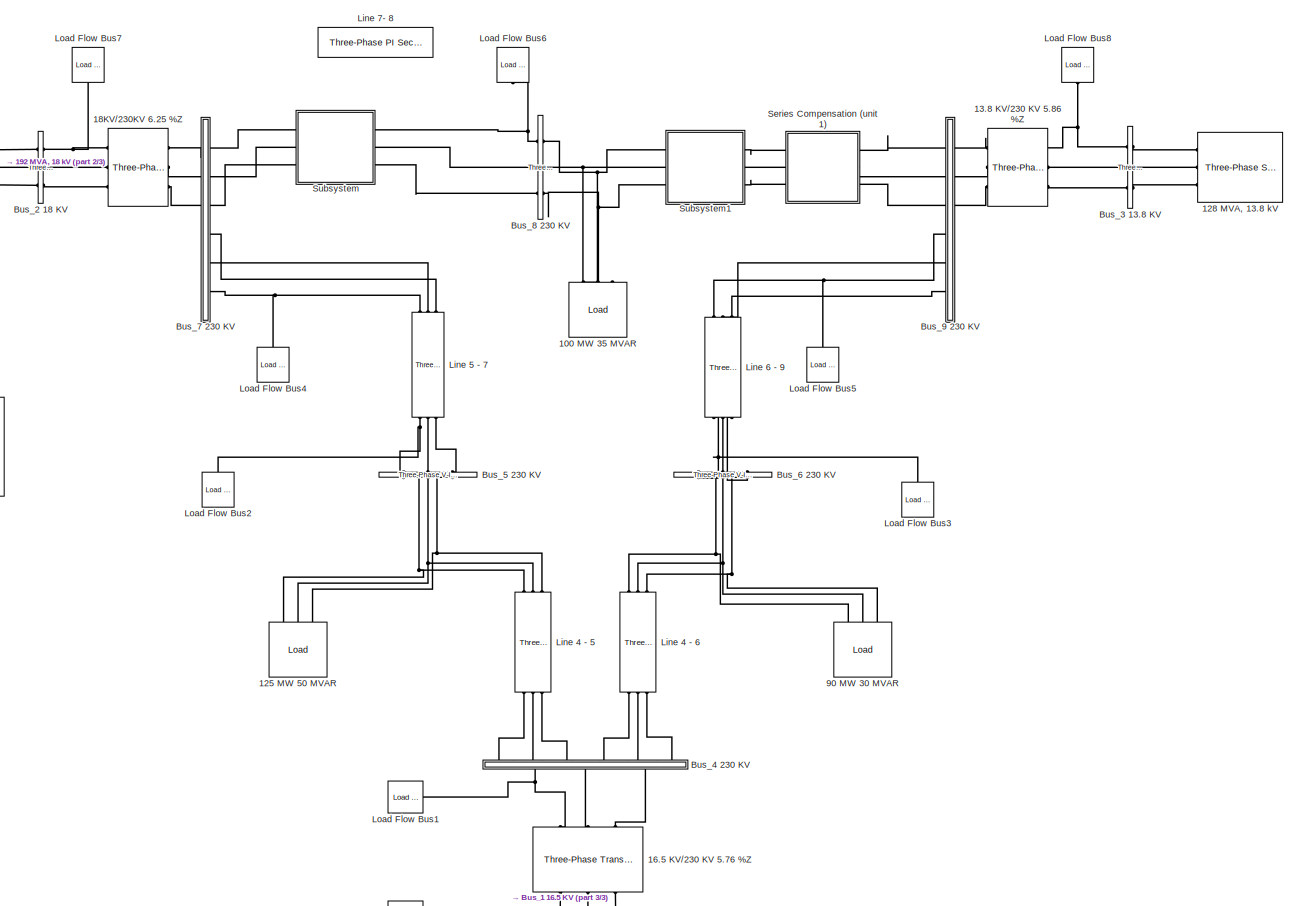
[diagram: root canvas - part 1/3, most of the canvas]
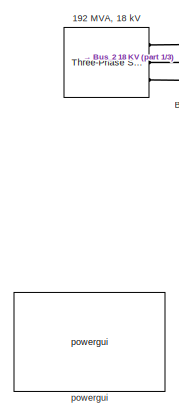
[diagram: root canvas - part 2/3, top left region]
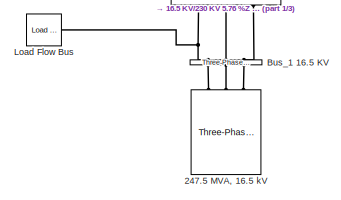
[diagram: root canvas - part 3/3, bottom center region]
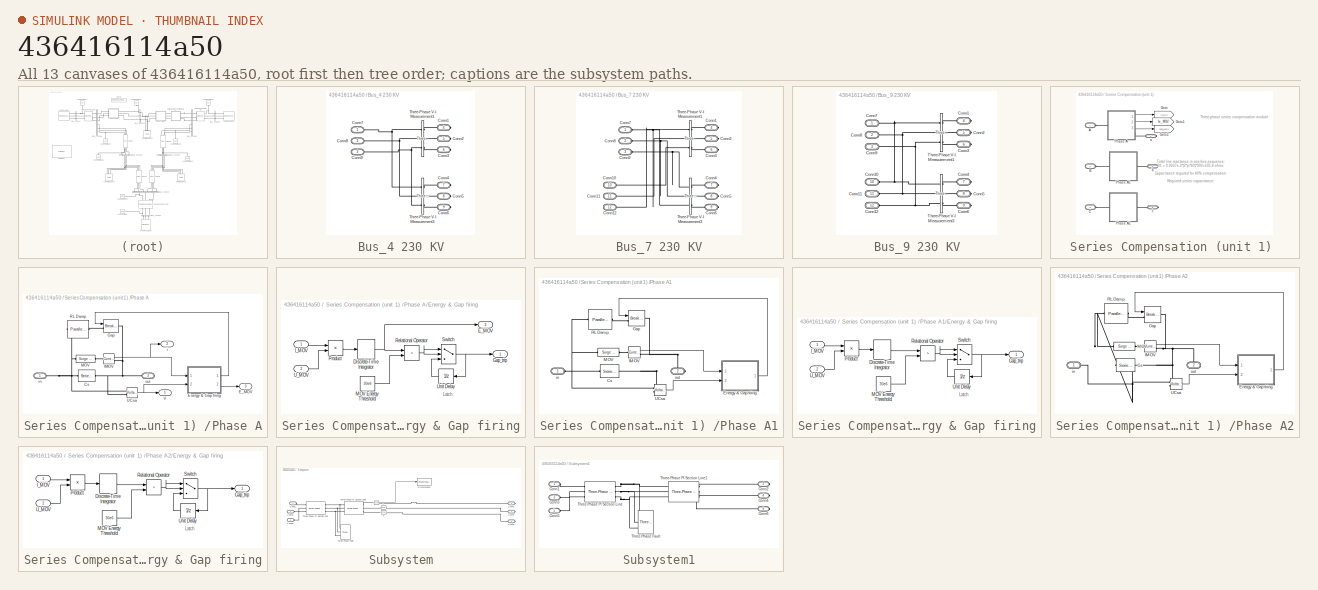
[diagram: thumbnail index - all 13 canvases of the model, root first then tree order]
MODEL slx_436416114a50
KIND model
CONFIG AbsTol = auto
CONFIG FixedStep = auto
CONFIG MaxStep = auto
CONFIG MinStep = auto
CONFIG RelTol = 1e-3
CONFIG SampleTimeConstraint = Unconstrained
CONFIG Solver = ode45
CONFIG SolverMode = Auto
CONFIG SolverName = ode45
CONFIG StartTime = 0.0
CONFIG StopTime = 0.05
BLOCK [Reference]  Line 4 - 6  REF=powerlib/Elements/Three-Phase
PI Section Line
  AttributesFormatString = \n
  Ports = [0, 0, 0, 0, 0, 3, 3]
  SourceBlock = powerlib/Elements/Three-Phase\nPI Section Line
  SourceType = Three-Phase PI Section Line
BLOCK [Reference]  Line 6 - 9  REF=powerlib/Elements/Three-Phase
PI Section Line
  AttributesFormatString = \n
  Ports = [0, 0, 0, 0, 0, 3, 3]
  SourceBlock = powerlib/Elements/Three-Phase\nPI Section Line
  SourceType = Three-Phase PI Section Line
BLOCK [Reference] 100 MW 35 MVAR  REF=jailib/Load  (lib defined in slx_75b92f426bfb)
  Ports = [0, 0, 0, 0, 0, 3]
  SourceBlock = jailib/Load
BLOCK [Reference] 125 MW 50 MVAR  REF=jailib/Load  (lib defined in slx_75b92f426bfb)
  Ports = [0, 0, 0, 0, 0, 3]
  SourceBlock = jailib/Load
BLOCK [Reference] 128 MVA, 13.8 kV  REF=powerlib/Electrical
Sources/Three-Phase Source
  Ports = [0, 0, 0, 0, 0, 0, 3]
  SourceBlock = powerlib/Electrical\nSources/Three-Phase Source
  SourceType = Three-Phase Source
BLOCK [Reference] 13.8 KV//230 KV 5.86 %Z  REF=powerlib/Elements/Three-Phase
Transformer
(Two Windings)
  Ports = [0, 0, 0, 0, 0, 3, 3]
  SourceBlock = powerlib/Elements/Three-Phase\nTransformer\n(Two Windings)
  SourceType = Three-Phase Transformer (Two Windings)
BLOCK [Reference] 16.5 KV//230 KV 5.76 %Z       REF=powerlib/Elements/Three-Phase
Transformer
(Two Windings)
  Ports = [0, 0, 0, 0, 0, 3, 3]
  SourceBlock = powerlib/Elements/Three-Phase\nTransformer\n(Two Windings)
  SourceType = Three-Phase Transformer (Two Windings)
BLOCK [Reference] 18KV//230KV 6.25 %Z  REF=powerlib/Elements/Three-Phase
Transformer
(Two Windings)
  Ports = [0, 0, 0, 0, 0, 3, 3]
  SourceBlock = powerlib/Elements/Three-Phase\nTransformer\n(Two Windings)
  SourceType = Three-Phase Transformer (Two Windings)
BLOCK [Reference] 192 MVA, 18 kV  REF=powerlib/Electrical
Sources/Three-Phase Source
  Ports = [0, 0, 0, 0, 0, 0, 3]
  SourceBlock = powerlib/Electrical\nSources/Three-Phase Source
  SourceType = Three-Phase Source
BLOCK [Reference] 247.5 MVA, 16.5 kV  REF=powerlib/Electrical
Sources/Three-Phase Source
  Ports = [0, 0, 0, 0, 0, 0, 3]
  SourceBlock = powerlib/Electrical\nSources/Three-Phase Source
  SourceType = Three-Phase Source
BLOCK [Reference] 90 MW 30 MVAR  REF=jailib/Load  (lib defined in slx_75b92f426bfb)
  Ports = [0, 0, 0, 0, 0, 3]
  SourceBlock = jailib/Load
BLOCK [Reference] Bus_1 16.5 KV  REF=powerlib/Measurements/Three-Phase
V-I Measurement
  Ports = [0, 0, 0, 0, 0, 3, 3]
  SourceBlock = powerlib/Measurements/Three-Phase\nV-I Measurement
  SourceType = Three-Phase VI Measurement
BLOCK [Reference] Bus_2 18 KV  REF=powerlib/Measurements/Three-Phase
V-I Measurement
  Ports = [0, 0, 0, 0, 0, 3, 3]
  SourceBlock = powerlib/Measurements/Three-Phase\nV-I Measurement
  SourceType = Three-Phase VI Measurement
BLOCK [Reference] Bus_3 13.8 KV  REF=powerlib/Measurements/Three-Phase
V-I Measurement
  Ports = [0, 0, 0, 0, 0, 3, 3]
  SourceBlock = powerlib/Measurements/Three-Phase\nV-I Measurement
  SourceType = Three-Phase VI Measurement
BLOCK [SubSystem] Bus_4 230 KV
  Ports = [0, 0, 0, 0, 0, 3, 6]
  RequestExecContextInheritance = off
  Variant = off
BLOCK [PMIOPort] Bus_4 230 KV/Conn1
  Port = 4
  Side = Right
BLOCK [PMIOPort] Bus_4 230 KV/Conn2
  Port = 5
  Side = Right
BLOCK [PMIOPort] Bus_4 230 KV/Conn3
  Port = 6
  Side = Right
BLOCK [PMIOPort] Bus_4 230 KV/Conn4
  Port = 7
  Side = Right
BLOCK [PMIOPort] Bus_4 230 KV/Conn5
  Port = 8
  Side = Right
BLOCK [PMIOPort] Bus_4 230 KV/Conn6
  Port = 9
  Side = Right
BLOCK [PMIOPort] Bus_4 230 KV/Conn7
  Port = 1
  Side = Left
BLOCK [PMIOPort] Bus_4 230 KV/Conn8
  Port = 2
  Side = Left
BLOCK [PMIOPort] Bus_4 230 KV/Conn9
  Port = 3
  Side = Left
BLOCK [Reference] Bus_4 230 KV/Three-Phase V-I Measurement1  REF=powerlib/Measurements/Three-Phase
V-I Measurement
  Ports = [0, 0, 0, 0, 0, 3, 3]
  SourceBlock = powerlib/Measurements/Three-Phase\nV-I Measurement
  SourceType = Three-Phase VI Measurement
BLOCK [Reference] Bus_4 230 KV/Three-Phase V-I Measurement3  REF=powerlib/Measurements/Three-Phase
V-I Measurement
  Ports = [0, 0, 0, 0, 0, 3, 3]
  SourceBlock = powerlib/Measurements/Three-Phase\nV-I Measurement
  SourceType = Three-Phase VI Measurement
BLOCK [Reference] Bus_5 230 KV  REF=powerlib/Measurements/Three-Phase
V-I Measurement
  Ports = [0, 0, 0, 0, 0, 3, 3]
  SourceBlock = powerlib/Measurements/Three-Phase\nV-I Measurement
  SourceType = Three-Phase VI Measurement
BLOCK [Reference] Bus_6 230 KV  REF=powerlib/Measurements/Three-Phase
V-I Measurement
  Ports = [0, 0, 0, 0, 0, 3, 3]
  SourceBlock = powerlib/Measurements/Three-Phase\nV-I Measurement
  SourceType = Three-Phase VI Measurement
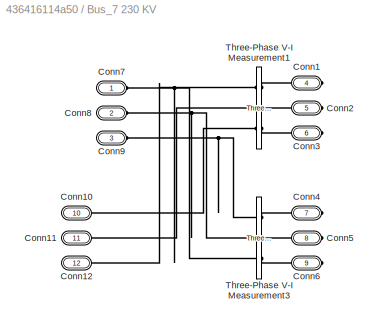
BLOCK [SubSystem] Bus_7 230 KV
  Ports = [0, 0, 0, 0, 0, 6, 6]
  RequestExecContextInheritance = off
  Variant = off
BLOCK [PMIOPort] Bus_7 230 KV/Conn1
  Port = 4
  Side = Right
BLOCK [PMIOPort] Bus_7 230 KV/Conn10
  Port = 10
  Side = Left
BLOCK [PMIOPort] Bus_7 230 KV/Conn11
  Port = 11
  Side = Left
BLOCK [PMIOPort] Bus_7 230 KV/Conn12
  Port = 12
  Side = Left
BLOCK [PMIOPort] Bus_7 230 KV/Conn2
  Port = 5
  Side = Right
BLOCK [PMIOPort] Bus_7 230 KV/Conn3
  Port = 6
  Side = Right
BLOCK [PMIOPort] Bus_7 230 KV/Conn4
  Port = 7
  Side = Right
BLOCK [PMIOPort] Bus_7 230 KV/Conn5
  Port = 8
  Side = Right
BLOCK [PMIOPort] Bus_7 230 KV/Conn6
  Port = 9
  Side = Right
BLOCK [PMIOPort] Bus_7 230 KV/Conn7
  Port = 1
  Side = Left
BLOCK [PMIOPort] Bus_7 230 KV/Conn8
  Port = 2
  Side = Left
BLOCK [PMIOPort] Bus_7 230 KV/Conn9
  Port = 3
  Side = Left
BLOCK [Reference] Bus_7 230 KV/Three-Phase V-I Measurement1  REF=powerlib/Measurements/Three-Phase
V-I Measurement
  Ports = [0, 0, 0, 0, 0, 3, 3]
  SourceBlock = powerlib/Measurements/Three-Phase\nV-I Measurement
  SourceType = Three-Phase VI Measurement
BLOCK [Reference] Bus_7 230 KV/Three-Phase V-I Measurement3  REF=powerlib/Measurements/Three-Phase
V-I Measurement
  Ports = [0, 0, 0, 0, 0, 3, 3]
  SourceBlock = powerlib/Measurements/Three-Phase\nV-I Measurement
  SourceType = Three-Phase VI Measurement
BLOCK [Reference] Bus_8 230 KV  REF=powerlib/Measurements/Three-Phase
V-I Measurement
  Ports = [0, 0, 0, 0, 0, 3, 3]
  SourceBlock = powerlib/Measurements/Three-Phase\nV-I Measurement
  SourceType = Three-Phase VI Measurement
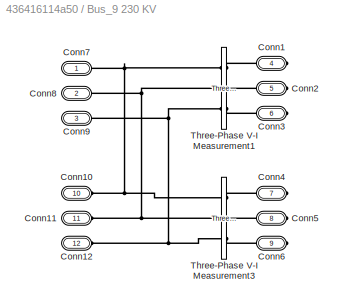
BLOCK [SubSystem] Bus_9 230 KV
  Ports = [0, 0, 0, 0, 0, 6, 6]
  RequestExecContextInheritance = off
  Variant = off
BLOCK [PMIOPort] Bus_9 230 KV/Conn1
  Port = 4
  Side = Right
BLOCK [PMIOPort] Bus_9 230 KV/Conn10
  Port = 10
  Side = Left
BLOCK [PMIOPort] Bus_9 230 KV/Conn11
  Port = 11
  Side = Left
BLOCK [PMIOPort] Bus_9 230 KV/Conn12
  Port = 12
  Side = Left
BLOCK [PMIOPort] Bus_9 230 KV/Conn2
  Port = 5
  Side = Right
BLOCK [PMIOPort] Bus_9 230 KV/Conn3
  Port = 6
  Side = Right
BLOCK [PMIOPort] Bus_9 230 KV/Conn4
  Port = 7
  Side = Right
BLOCK [PMIOPort] Bus_9 230 KV/Conn5
  Port = 8
  Side = Right
BLOCK [PMIOPort] Bus_9 230 KV/Conn6
  Port = 9
  Side = Right
BLOCK [PMIOPort] Bus_9 230 KV/Conn7
  Port = 1
  Side = Left
BLOCK [PMIOPort] Bus_9 230 KV/Conn8
  Port = 2
  Side = Left
BLOCK [PMIOPort] Bus_9 230 KV/Conn9
  Port = 3
  Side = Left
BLOCK [Reference] Bus_9 230 KV/Three-Phase V-I Measurement1  REF=powerlib/Measurements/Three-Phase
V-I Measurement
  Ports = [0, 0, 0, 0, 0, 3, 3]
  SourceBlock = powerlib/Measurements/Three-Phase\nV-I Measurement
  SourceType = Three-Phase VI Measurement
BLOCK [Reference] Bus_9 230 KV/Three-Phase V-I Measurement3  REF=powerlib/Measurements/Three-Phase
V-I Measurement
  Ports = [0, 0, 0, 0, 0, 3, 3]
  SourceBlock = powerlib/Measurements/Three-Phase\nV-I Measurement
  SourceType = Three-Phase VI Measurement
BLOCK [Reference] Line 4 - 5   REF=powerlib/Elements/Three-Phase
PI Section Line
  AttributesFormatString = \n
  Ports = [0, 0, 0, 0, 0, 3, 3]
  SourceBlock = powerlib/Elements/Three-Phase\nPI Section Line
  SourceType = Three-Phase PI Section Line
BLOCK [Reference] Line 5 - 7   REF=powerlib/Elements/Three-Phase
PI Section Line
  AttributesFormatString = \n
  Ports = [0, 0, 0, 0, 0, 3, 3]
  SourceBlock = powerlib/Elements/Three-Phase\nPI Section Line
  SourceType = Three-Phase PI Section Line
BLOCK [Reference] Line 7- 8  REF=powerlib/Elements/Three-Phase
PI Section Line
  AttributesFormatString = \n
  Ports = [0, 0, 0, 0, 0, 3, 3]
  SourceBlock = powerlib/Elements/Three-Phase\nPI Section Line
  SourceType = Three-Phase PI Section Line
BLOCK [Reference] Load Flow Bus  REF=powerlib/Measurements/Load Flow Bus
  AttributesFormatString = %<ID>\n%<Vbase>V\n%<VLF>pu\n%<angleLF>deg.
  Ports = [0, 0, 0, 0, 0, 1]
  SourceBlock = powerlib/Measurements/Load Flow Bus
  SourceType = Load Flow Bus
BLOCK [Reference] Load Flow Bus1  REF=powerlib/Measurements/Load Flow Bus
  AttributesFormatString = %<ID>\n%<Vbase>V\n%<VLF>pu\n%<angleLF>deg.
  Ports = [0, 0, 0, 0, 0, 1]
  SourceBlock = powerlib/Measurements/Load Flow Bus
  SourceType = Load Flow Bus
BLOCK [Reference] Load Flow Bus2  REF=powerlib/Measurements/Load Flow Bus
  AttributesFormatString = %<ID>\n%<Vbase>V\n%<VLF>pu\n%<angleLF>deg.
  Ports = [0, 0, 0, 0, 0, 1]
  SourceBlock = powerlib/Measurements/Load Flow Bus
  SourceType = Load Flow Bus
BLOCK [Reference] Load Flow Bus3  REF=powerlib/Measurements/Load Flow Bus
  AttributesFormatString = %<ID>\n%<Vbase>V\n%<VLF>pu\n%<angleLF>deg.
  Ports = [0, 0, 0, 0, 0, 1]
  SourceBlock = powerlib/Measurements/Load Flow Bus
  SourceType = Load Flow Bus
BLOCK [Reference] Load Flow Bus4  REF=powerlib/Measurements/Load Flow Bus
  AttributesFormatString = %<ID>\n%<Vbase>V\n%<VLF>pu\n%<angleLF>deg.
  Ports = [0, 0, 0, 0, 0, 1]
  SourceBlock = powerlib/Measurements/Load Flow Bus
  SourceType = Load Flow Bus
BLOCK [Reference] Load Flow Bus5  REF=powerlib/Measurements/Load Flow Bus
  AttributesFormatString = %<ID>\n%<Vbase>V\n%<VLF>pu\n%<angleLF>deg.
  Ports = [0, 0, 0, 0, 0, 1]
  SourceBlock = powerlib/Measurements/Load Flow Bus
  SourceType = Load Flow Bus
BLOCK [Reference] Load Flow Bus6  REF=powerlib/Measurements/Load Flow Bus
  AttributesFormatString = %<ID>\n%<Vbase>V\n%<VLF>pu\n%<angleLF>deg.
  Ports = [0, 0, 0, 0, 0, 1]
  SourceBlock = powerlib/Measurements/Load Flow Bus
  SourceType = Load Flow Bus
BLOCK [Reference] Load Flow Bus7  REF=powerlib/Measurements/Load Flow Bus
  AttributesFormatString = %<ID>\n%<Vbase>V\n%<VLF>pu\n%<angleLF>deg.
  Ports = [0, 0, 0, 0, 0, 1]
  SourceBlock = powerlib/Measurements/Load Flow Bus
  SourceType = Load Flow Bus
BLOCK [Reference] Load Flow Bus8  REF=powerlib/Measurements/Load Flow Bus
  AttributesFormatString = %<ID>\n%<Vbase>V\n%<VLF>pu\n%<angleLF>deg.
  Ports = [0, 0, 0, 0, 0, 1]
  SourceBlock = powerlib/Measurements/Load Flow Bus
  SourceType = Load Flow Bus
BLOCK [SubSystem] Series Compensation (unit 1) 
  Ports = [0, 0, 0, 0, 0, 3, 3]
  RequestExecContextInheritance = off
  Variant = off
BLOCK [PMIOPort] Series Compensation (unit 1) /A
  Port = 1
  Side = Left
BLOCK [PMIOPort] Series Compensation (unit 1) /B
  Port = 2
  Side = Left
BLOCK [PMIOPort] Series Compensation (unit 1) /C
  Port = 3
  Side = Left
BLOCK [Goto] Series Compensation (unit 1) /Goto
  GotoTag = Va_Cs
  TagVisibility = global
BLOCK [Goto] Series Compensation (unit 1) /Goto1
  GotoTag = Ia_MOV
  TagVisibility = global
BLOCK [Goto] Series Compensation (unit 1) /Goto2
  GotoTag = Wa_MOV
  TagVisibility = global
BLOCK [SubSystem] Series Compensation (unit 1) /Phase A
  Ports = [0, 3, 0, 0, 0, 1, 1]
  RequestExecContextInheritance = off
  Variant = off
BLOCK [Reference] Series Compensation (unit 1) /Phase A/Cs  REF=powerlib/Elements/Series RLC Branch
  AttributesFormatString = \n
  Ports = [0, 0, 0, 0, 0, 1, 1]
  SourceBlock = powerlib/Elements/Series RLC Branch
  SourceType = Series RLC Branch
BLOCK [Outport] Series Compensation (unit 1) /Phase A/E_MOV
  IconDisplay = Port number
  Port = 3
BLOCK [SubSystem] Series Compensation (unit 1) /Phase A/Energy & Gap firing
  Ports = [2, 2]
  RequestExecContextInheritance = off
  Variant = off
BLOCK [DiscreteIntegrator] Series Compensation (unit 1) /Phase A/Energy & Gap firing/Discrete-Time Integrator
  ICPrevOutput = DiscIntNeverNeededParam
  ICPrevScaledInput = DiscIntNeverNeededParam
  Ports = [1, 1]
  SampleTime = 0.01
BLOCK [Outport] Series Compensation (unit 1) /Phase A/Energy & Gap firing/E_MOV
  IconDisplay = Port number
  InitialOutput = 0
  Port = 2
BLOCK [Outport] Series Compensation (unit 1) /Phase A/Energy & Gap firing/Gap_trip
  IconDisplay = Port number
BLOCK [Inport] Series Compensation (unit 1) /Phase A/Energy & Gap firing/I_MOV
  IconDisplay = Port number
BLOCK [Constant] Series Compensation (unit 1) /Phase A/Energy & Gap firing/MOV Energy Threshold
  Value = 30e6
BLOCK [Product] Series Compensation (unit 1) /Phase A/Energy & Gap firing/Product
  Ports = [2, 1]
  RndMeth = Floor
BLOCK [RelationalOperator] Series Compensation (unit 1) /Phase A/Energy & Gap firing/Relational Operator
  Operator = >
  Ports = [2, 1]
  ZeroCross = off
BLOCK [Switch] Series Compensation (unit 1) /Phase A/Energy & Gap firing/Switch
  SaturateOnIntegerOverflow = off
  Threshold = 0.5
  ZeroCross = off
BLOCK [Inport] Series Compensation (unit 1) /Phase A/Energy & Gap firing/U_MOV
  IconDisplay = Port number
  Port = 2
BLOCK [UnitDelay] Series Compensation (unit 1) /Phase A/Energy & Gap firing/Unit Delay
  SampleTime = 0.01
BLOCK [Reference] Series Compensation (unit 1) /Phase A/Gap  REF=powerlib/Elements/Breaker
  AttributesFormatString = \n
  Ports = [1, 0, 0, 0, 0, 1, 1]
  SourceBlock = powerlib/Elements/Breaker
  SourceType = Breaker
BLOCK [Reference] Series Compensation (unit 1) /Phase A/IMOV  REF=powerlib/Measurements/Current Measurement
  AttributesFormatString = \n
  Ports = [0, 1, 0, 0, 0, 1, 1]
  SourceBlock = powerlib/Measurements/Current Measurement
  SourceType = Current Measurement
  Tag = PoWeRsYsTeMmEaSuReMeNt
BLOCK [Reference] Series Compensation (unit 1) /Phase A/MOV  REF=powerlib/Elements/Surge Arrester
  AttributesFormatString = \n
  Ports = [0, 0, 0, 0, 0, 1, 1]
  SourceBlock = powerlib/Elements/Surge Arrester
  SourceType = Surge Arrester
BLOCK [Reference] Series Compensation (unit 1) /Phase A/RL Damp.  REF=powerlib/Elements/Parallel RLC Branch
  AttributesFormatString = \n
  Ports = [0, 0, 0, 0, 0, 1, 1]
  SourceBlock = powerlib/Elements/Parallel RLC Branch
  SourceType = Parallel RLC Branch
BLOCK [Reference] Series Compensation (unit 1) /Phase A/UCsa  REF=powerlib/Measurements/Voltage Measurement
  AttributesFormatString = \n
  Ports = [0, 1, 0, 0, 0, 2]
  SourceBlock = powerlib/Measurements/Voltage Measurement
  SourceType = Voltage Measurement
  Tag = PoWeRsYsTeMmEaSuReMeNt
BLOCK [Outport] Series Compensation (unit 1) /Phase A/V
  IconDisplay = Port number
BLOCK [Outport] Series Compensation (unit 1) /Phase A/i
  IconDisplay = Port number
  Port = 2
BLOCK [PMIOPort] Series Compensation (unit 1) /Phase A/in
  Port = 1
  Side = Left
BLOCK [PMIOPort] Series Compensation (unit 1) /Phase A/out 
  Port = 2
  Side = Right
BLOCK [SubSystem] Series Compensation (unit 1) /Phase A1
  Ports = [0, 0, 0, 0, 0, 1, 1]
  RequestExecContextInheritance = off
  Variant = off
BLOCK [Reference] Series Compensation (unit 1) /Phase A1/Cs  REF=powerlib/Elements/Series RLC Branch
  AttributesFormatString = \n
  Ports = [0, 0, 0, 0, 0, 1, 1]
  SourceBlock = powerlib/Elements/Series RLC Branch
  SourceType = Series RLC Branch
BLOCK [SubSystem] Series Compensation (unit 1) /Phase A1/Energy & Gap firing
  Ports = [2, 1]
  RequestExecContextInheritance = off
  Variant = off
BLOCK [DiscreteIntegrator] Series Compensation (unit 1) /Phase A1/Energy & Gap firing/Discrete-Time Integrator
  ICPrevOutput = DiscIntNeverNeededParam
  ICPrevScaledInput = DiscIntNeverNeededParam
  Ports = [1, 1]
  SampleTime = 0.01
BLOCK [Outport] Series Compensation (unit 1) /Phase A1/Energy & Gap firing/Gap_trip
  IconDisplay = Port number
BLOCK [Inport] Series Compensation (unit 1) /Phase A1/Energy & Gap firing/I_MOV
  IconDisplay = Port number
BLOCK [Constant] Series Compensation (unit 1) /Phase A1/Energy & Gap firing/MOV Energy Threshold
  Value = 30e6
BLOCK [Product] Series Compensation (unit 1) /Phase A1/Energy & Gap firing/Product
  Ports = [2, 1]
  RndMeth = Floor
BLOCK [RelationalOperator] Series Compensation (unit 1) /Phase A1/Energy & Gap firing/Relational Operator
  Operator = >
  Ports = [2, 1]
  ZeroCross = off
BLOCK [Switch] Series Compensation (unit 1) /Phase A1/Energy & Gap firing/Switch
  SaturateOnIntegerOverflow = off
  Threshold = 0.5
  ZeroCross = off
BLOCK [Inport] Series Compensation (unit 1) /Phase A1/Energy & Gap firing/U_MOV
  IconDisplay = Port number
  Port = 2
BLOCK [UnitDelay] Series Compensation (unit 1) /Phase A1/Energy & Gap firing/Unit Delay
  SampleTime = 0.01
BLOCK [Reference] Series Compensation (unit 1) /Phase A1/Gap  REF=powerlib/Elements/Breaker
  AttributesFormatString = \n
  Ports = [1, 0, 0, 0, 0, 1, 1]
  SourceBlock = powerlib/Elements/Breaker
  SourceType = Breaker
BLOCK [Reference] Series Compensation (unit 1) /Phase A1/IMOV  REF=powerlib/Measurements/Current Measurement
  AttributesFormatString = \n
  Ports = [0, 1, 0, 0, 0, 1, 1]
  SourceBlock = powerlib/Measurements/Current Measurement
  SourceType = Current Measurement
  Tag = PoWeRsYsTeMmEaSuReMeNt
BLOCK [Reference] Series Compensation (unit 1) /Phase A1/MOV  REF=powerlib/Elements/Surge Arrester
  AttributesFormatString = \n
  Ports = [0, 0, 0, 0, 0, 1, 1]
  SourceBlock = powerlib/Elements/Surge Arrester
  SourceType = Surge Arrester
BLOCK [Reference] Series Compensation (unit 1) /Phase A1/RL Damp.  REF=powerlib/Elements/Parallel RLC Branch
  AttributesFormatString = \n
  Ports = [0, 0, 0, 0, 0, 1, 1]
  SourceBlock = powerlib/Elements/Parallel RLC Branch
  SourceType = Parallel RLC Branch
BLOCK [Reference] Series Compensation (unit 1) /Phase A1/UCsa  REF=powerlib/Measurements/Voltage Measurement
  AttributesFormatString = \n
  Ports = [0, 1, 0, 0, 0, 2]
  SourceBlock = powerlib/Measurements/Voltage Measurement
  SourceType = Voltage Measurement
  Tag = PoWeRsYsTeMmEaSuReMeNt
BLOCK [PMIOPort] Series Compensation (unit 1) /Phase A1/in
  Port = 1
  Side = Left
BLOCK [PMIOPort] Series Compensation (unit 1) /Phase A1/out 
  Port = 2
  Side = Right
BLOCK [SubSystem] Series Compensation (unit 1) /Phase A2
  Ports = [0, 0, 0, 0, 0, 1, 1]
  RequestExecContextInheritance = off
  Variant = off
BLOCK [Reference] Series Compensation (unit 1) /Phase A2/Cs  REF=powerlib/Elements/Series RLC Branch
  AttributesFormatString = \n
  Ports = [0, 0, 0, 0, 0, 1, 1]
  SourceBlock = powerlib/Elements/Series RLC Branch
  SourceType = Series RLC Branch
BLOCK [SubSystem] Series Compensation (unit 1) /Phase A2/Energy & Gap firing
  Ports = [2, 1]
  RequestExecContextInheritance = off
  Variant = off
BLOCK [DiscreteIntegrator] Series Compensation (unit 1) /Phase A2/Energy & Gap firing/Discrete-Time Integrator
  ICPrevOutput = DiscIntNeverNeededParam
  ICPrevScaledInput = DiscIntNeverNeededParam
  Ports = [1, 1]
  SampleTime = 0.01
BLOCK [Outport] Series Compensation (unit 1) /Phase A2/Energy & Gap firing/Gap_trip
  IconDisplay = Port number
BLOCK [Inport] Series Compensation (unit 1) /Phase A2/Energy & Gap firing/I_MOV
  IconDisplay = Port number
BLOCK [Constant] Series Compensation (unit 1) /Phase A2/Energy & Gap firing/MOV Energy Threshold
  Value = 30e6
BLOCK [Product] Series Compensation (unit 1) /Phase A2/Energy & Gap firing/Product
  Ports = [2, 1]
  RndMeth = Floor
BLOCK [RelationalOperator] Series Compensation (unit 1) /Phase A2/Energy & Gap firing/Relational Operator
  Operator = >
  Ports = [2, 1]
  ZeroCross = off
BLOCK [Switch] Series Compensation (unit 1) /Phase A2/Energy & Gap firing/Switch
  SaturateOnIntegerOverflow = off
  Threshold = 0.5
  ZeroCross = off
BLOCK [Inport] Series Compensation (unit 1) /Phase A2/Energy & Gap firing/U_MOV
  IconDisplay = Port number
  Port = 2
BLOCK [UnitDelay] Series Compensation (unit 1) /Phase A2/Energy & Gap firing/Unit Delay
  SampleTime = 0.01
BLOCK [Reference] Series Compensation (unit 1) /Phase A2/Gap  REF=powerlib/Elements/Breaker
  AttributesFormatString = \n
  Ports = [1, 0, 0, 0, 0, 1, 1]
  SourceBlock = powerlib/Elements/Breaker
  SourceType = Breaker
BLOCK [Reference] Series Compensation (unit 1) /Phase A2/IMOV  REF=powerlib/Measurements/Current Measurement
  AttributesFormatString = \n
  Ports = [0, 1, 0, 0, 0, 1, 1]
  SourceBlock = powerlib/Measurements/Current Measurement
  SourceType = Current Measurement
  Tag = PoWeRsYsTeMmEaSuReMeNt
BLOCK [Reference] Series Compensation (unit 1) /Phase A2/MOV  REF=powerlib/Elements/Surge Arrester
  AttributesFormatString = \n
  Ports = [0, 0, 0, 0, 0, 1, 1]
  SourceBlock = powerlib/Elements/Surge Arrester
  SourceType = Surge Arrester
BLOCK [Reference] Series Compensation (unit 1) /Phase A2/RL Damp.  REF=powerlib/Elements/Parallel RLC Branch
  AttributesFormatString = \n
  Ports = [0, 0, 0, 0, 0, 1, 1]
  SourceBlock = powerlib/Elements/Parallel RLC Branch
  SourceType = Parallel RLC Branch
BLOCK [Reference] Series Compensation (unit 1) /Phase A2/UCsa  REF=powerlib/Measurements/Voltage Measurement
  AttributesFormatString = \n
  Ports = [0, 1, 0, 0, 0, 2]
  SourceBlock = powerlib/Measurements/Voltage Measurement
  SourceType = Voltage Measurement
  Tag = PoWeRsYsTeMmEaSuReMeNt
BLOCK [PMIOPort] Series Compensation (unit 1) /Phase A2/in
  Port = 1
  Side = Left
BLOCK [PMIOPort] Series Compensation (unit 1) /Phase A2/out 
  Port = 2
  Side = Right
BLOCK [PMIOPort] Series Compensation (unit 1) /a
  Port = 4
  Side = Right
BLOCK [PMIOPort] Series Compensation (unit 1) /b
  Port = 5
  Side = Right
BLOCK [PMIOPort] Series Compensation (unit 1) /c
  Port = 6
  Side = Right
BLOCK [SubSystem] Subsystem
  Ports = [0, 0, 0, 0, 0, 3, 3]
  RequestExecContextInheritance = off
  Variant = off
BLOCK [Reference] Subsystem/   REF=powerlib/Measurements/Current Measurement
  Ports = [0, 1, 0, 0, 0, 1, 1]
  SourceBlock = powerlib/Measurements/Current Measurement
  SourceType = Current Measurement
  UserDataPersistent = on
BLOCK [Reference] Subsystem/ 1  REF=powerlib/Measurements/Current Measurement
  Ports = [0, 1, 0, 0, 0, 1, 1]
  SourceBlock = powerlib/Measurements/Current Measurement
  SourceType = Current Measurement
  UserDataPersistent = on
BLOCK [Reference] Subsystem/ 2  REF=powerlib/Measurements/Current Measurement
  Ports = [0, 1, 0, 0, 0, 1, 1]
  SourceBlock = powerlib/Measurements/Current Measurement
  SourceType = Current Measurement
  UserDataPersistent = on
BLOCK [PMIOPort] Subsystem/Conn1
  Port = 1
  Side = Left
BLOCK [PMIOPort] Subsystem/Conn2
  Port = 2
  Side = Right
BLOCK [PMIOPort] Subsystem/Conn3
  Port = 3
  Side = Left
BLOCK [PMIOPort] Subsystem/Conn4
  Port = 4
  Side = Right
BLOCK [PMIOPort] Subsystem/Conn5
  Port = 5
  Side = Left
BLOCK [PMIOPort] Subsystem/Conn6
  Port = 6
  Side = Right
BLOCK [Reference] Subsystem/Three-Phase Fault  REF=powerlib/Elements/Three-Phase Fault
  Ports = [0, 0, 0, 0, 0, 3]
  SourceBlock = powerlib/Elements/Three-Phase Fault
  SourceType = Three-Phase Fault
BLOCK [Reference] Subsystem/Three-Phase PI Section Line  REF=powerlib/Elements/Three-Phase
PI Section Line
  AttributesFormatString = \n
  Ports = [0, 0, 0, 0, 0, 3, 3]
  SourceBlock = powerlib/Elements/Three-Phase\nPI Section Line
  SourceType = Three-Phase PI Section Line
BLOCK [Reference] Subsystem/Three-Phase PI Section Line1  REF=powerlib/Elements/Three-Phase
PI Section Line
  AttributesFormatString = \n
  Ports = [0, 0, 0, 0, 0, 3, 3]
  SourceBlock = powerlib/Elements/Three-Phase\nPI Section Line
  SourceType = Three-Phase PI Section Line
BLOCK [ToWorkspace] Subsystem/To Workspace
  FixptAsFi = on
  MaxDataPoints = inf
  Ports = [1]
  SampleTime = -1
  Save2DSignal = 3-D array (concatenate along third dimension)
  SaveFormat = Timeseries
  VariableName = simout
BLOCK [SubSystem] Subsystem1
  Ports = [0, 0, 0, 0, 0, 3, 3]
  RequestExecContextInheritance = off
  Variant = off
BLOCK [PMIOPort] Subsystem1/Conn1
  Port = 1
  Side = Left
BLOCK [PMIOPort] Subsystem1/Conn2
  Port = 2
  Side = Right
BLOCK [PMIOPort] Subsystem1/Conn3
  Port = 3
  Side = Left
BLOCK [PMIOPort] Subsystem1/Conn4
  Port = 4
  Side = Right
BLOCK [PMIOPort] Subsystem1/Conn5
  Port = 5
  Side = Left
BLOCK [PMIOPort] Subsystem1/Conn6
  Port = 6
  Side = Right
BLOCK [Reference] Subsystem1/Three-Phase Fault  REF=powerlib/Elements/Three-Phase Fault
  Ports = [0, 0, 0, 0, 0, 3]
  SourceBlock = powerlib/Elements/Three-Phase Fault
  SourceType = Three-Phase Fault
BLOCK [Reference] Subsystem1/Three-Phase PI Section Line  REF=powerlib/Elements/Three-Phase
PI Section Line
  AttributesFormatString = \n
  Ports = [0, 0, 0, 0, 0, 3, 3]
  SourceBlock = powerlib/Elements/Three-Phase\nPI Section Line
  SourceType = Three-Phase PI Section Line
BLOCK [Reference] Subsystem1/Three-Phase PI Section Line1  REF=powerlib/Elements/Three-Phase
PI Section Line
  AttributesFormatString = \n
  Ports = [0, 0, 0, 0, 0, 3, 3]
  SourceBlock = powerlib/Elements/Three-Phase\nPI Section Line
  SourceType = Three-Phase PI Section Line
BLOCK [Reference] powergui  REF=powerlib/powergui
  Ports = []
  Priority = 1
  SourceBlock = powerlib/powergui
  SourceType = PSB option menu block
  UserDataPersistent = on
ANNOTATION Series Compensation (unit 1) : Three-phase series compensation module
ANNOTATION Series Compensation (unit 1) : Total line reactance in positive-sequence: X1 = 0.9337e-3*(2*pi*60)*300=105.6 ohms Capacitance required for 40% compensation: Required series capacitance: Xc=0.4*105.6 = 42.24 ohms or Cs= 62.8 uF MOV protection level required to protect the capacitors at 2.5 timesthe nominal capacitor voltage. (The nominal capacitor voltage is taken at 2 kA rms line curent) Uprot.= 2.5*2kA*42.24*sqrt(2)= 298.7 kV
ANNOTATION Series Compensation (unit 1) /Phase A/Energy & Gap firing: Latch
ANNOTATION Series Compensation (unit 1) /Phase A1/Energy & Gap firing: Latch
ANNOTATION Series Compensation (unit 1) /Phase A2/Energy & Gap firing: Latch
NET Series Compensation (unit 1) /Phase A/Energy & Gap firing/Discrete-Time Integrator:1 -> Series Compensation (unit 1) /Phase A/Energy & Gap firing/E_MOV:1, Series Compensation (unit 1) /Phase A/Energy & Gap firing/Relational Operator:1
LINE Series Compensation (unit 1) /Phase A/Energy & Gap firing/I_MOV:1 -> Series Compensation (unit 1) /Phase A/Energy & Gap firing/Product:1
LINE Series Compensation (unit 1) /Phase A/Energy & Gap firing/MOV Energy Threshold:1 -> Series Compensation (unit 1) /Phase A/Energy & Gap firing/Relational Operator:2
LINE Series Compensation (unit 1) /Phase A/Energy & Gap firing/Product:1 -> Series Compensation (unit 1) /Phase A/Energy & Gap firing/Discrete-Time Integrator:1
NET Series Compensation (unit 1) /Phase A/Energy & Gap firing/Relational Operator:1 -> Series Compensation (unit 1) /Phase A/Energy & Gap firing/Switch:1, Series Compensation (unit 1) /Phase A/Energy & Gap firing/Switch:2
NET Series Compensation (unit 1) /Phase A/Energy & Gap firing/Switch:1 -> Series Compensation (unit 1) /Phase A/Energy & Gap firing/Gap_trip:1, Series Compensation (unit 1) /Phase A/Energy & Gap firing/Unit Delay:1
LINE Series Compensation (unit 1) /Phase A/Energy & Gap firing/U_MOV:1 -> Series Compensation (unit 1) /Phase A/Energy & Gap firing/Product:2
LINE Series Compensation (unit 1) /Phase A/Energy & Gap firing/Unit Delay:1 -> Series Compensation (unit 1) /Phase A/Energy & Gap firing/Switch:3
LINE Series Compensation (unit 1) /Phase A/Energy & Gap firing:1 -> Series Compensation (unit 1) /Phase A/Gap:1
LINE Series Compensation (unit 1) /Phase A/Energy & Gap firing:2 -> Series Compensation (unit 1) /Phase A/E_MOV:1
NET Series Compensation (unit 1) /Phase A/IMOV:1 -> Series Compensation (unit 1) /Phase A/Energy & Gap firing:1, Series Compensation (unit 1) /Phase A/i:1
NET Series Compensation (unit 1) /Phase A/UCsa:1 -> Series Compensation (unit 1) /Phase A/Energy & Gap firing:2, Series Compensation (unit 1) /Phase A/V:1
LINE Series Compensation (unit 1) /Phase A1/Energy & Gap firing/Discrete-Time Integrator:1 -> Series Compensation (unit 1) /Phase A1/Energy & Gap firing/Relational Operator:1
LINE Series Compensation (unit 1) /Phase A1/Energy & Gap firing/I_MOV:1 -> Series Compensation (unit 1) /Phase A1/Energy & Gap firing/Product:1
LINE Series Compensation (unit 1) /Phase A1/Energy & Gap firing/MOV Energy Threshold:1 -> Series Compensation (unit 1) /Phase A1/Energy & Gap firing/Relational Operator:2
LINE Series Compensation (unit 1) /Phase A1/Energy & Gap firing/Product:1 -> Series Compensation (unit 1) /Phase A1/Energy & Gap firing/Discrete-Time Integrator:1
NET Series Compensation (unit 1) /Phase A1/Energy & Gap firing/Relational Operator:1 -> Series Compensation (unit 1) /Phase A1/Energy & Gap firing/Switch:1, Series Compensation (unit 1) /Phase A1/Energy & Gap firing/Switch:2
NET Series Compensation (unit 1) /Phase A1/Energy & Gap firing/Switch:1 -> Series Compensation (unit 1) /Phase A1/Energy & Gap firing/Gap_trip:1, Series Compensation (unit 1) /Phase A1/Energy & Gap firing/Unit Delay:1
LINE Series Compensation (unit 1) /Phase A1/Energy & Gap firing/U_MOV:1 -> Series Compensation (unit 1) /Phase A1/Energy & Gap firing/Product:2
LINE Series Compensation (unit 1) /Phase A1/Energy & Gap firing/Unit Delay:1 -> Series Compensation (unit 1) /Phase A1/Energy & Gap firing/Switch:3
LINE Series Compensation (unit 1) /Phase A1/Energy & Gap firing:1 -> Series Compensation (unit 1) /Phase A1/Gap:1
LINE Series Compensation (unit 1) /Phase A1/IMOV:1 -> Series Compensation (unit 1) /Phase A1/Energy & Gap firing:1
LINE Series Compensation (unit 1) /Phase A1/UCsa:1 -> Series Compensation (unit 1) /Phase A1/Energy & Gap firing:2
LINE Series Compensation (unit 1) /Phase A2/Energy & Gap firing/Discrete-Time Integrator:1 -> Series Compensation (unit 1) /Phase A2/Energy & Gap firing/Relational Operator:1
LINE Series Compensation (unit 1) /Phase A2/Energy & Gap firing/I_MOV:1 -> Series Compensation (unit 1) /Phase A2/Energy & Gap firing/Product:1
LINE Series Compensation (unit 1) /Phase A2/Energy & Gap firing/MOV Energy Threshold:1 -> Series Compensation (unit 1) /Phase A2/Energy & Gap firing/Relational Operator:2
LINE Series Compensation (unit 1) /Phase A2/Energy & Gap firing/Product:1 -> Series Compensation (unit 1) /Phase A2/Energy & Gap firing/Discrete-Time Integrator:1
NET Series Compensation (unit 1) /Phase A2/Energy & Gap firing/Relational Operator:1 -> Series Compensation (unit 1) /Phase A2/Energy & Gap firing/Switch:1, Series Compensation (unit 1) /Phase A2/Energy & Gap firing/Switch:2
NET Series Compensation (unit 1) /Phase A2/Energy & Gap firing/Switch:1 -> Series Compensation (unit 1) /Phase A2/Energy & Gap firing/Gap_trip:1, Series Compensation (unit 1) /Phase A2/Energy & Gap firing/Unit Delay:1
LINE Series Compensation (unit 1) /Phase A2/Energy & Gap firing/U_MOV:1 -> Series Compensation (unit 1) /Phase A2/Energy & Gap firing/Product:2
LINE Series Compensation (unit 1) /Phase A2/Energy & Gap firing/Unit Delay:1 -> Series Compensation (unit 1) /Phase A2/Energy & Gap firing/Switch:3
LINE Series Compensation (unit 1) /Phase A2/Energy & Gap firing:1 -> Series Compensation (unit 1) /Phase A2/Gap:1
LINE Series Compensation (unit 1) /Phase A2/IMOV:1 -> Series Compensation (unit 1) /Phase A2/Energy & Gap firing:1
LINE Series Compensation (unit 1) /Phase A2/UCsa:1 -> Series Compensation (unit 1) /Phase A2/Energy & Gap firing:2
LINE Series Compensation (unit 1) /Phase A:1 -> Series Compensation (unit 1) /Goto:1
LINE Series Compensation (unit 1) /Phase A:2 -> Series Compensation (unit 1) /Goto1:1
LINE Series Compensation (unit 1) /Phase A:3 -> Series Compensation (unit 1) /Goto2:1
LINE Subsystem/ :1 -> Subsystem/To Workspace:1
PNET net1:  Line 4 - 6:LConn1 -- 90 MW 30 MVAR:LConn1 -- Bus_6 230 KV:RConn1
PNET net2:  Line 4 - 6:LConn2 -- 90 MW 30 MVAR:LConn2 -- Bus_6 230 KV:RConn2
PNET net3:  Line 4 - 6:LConn3 -- 90 MW 30 MVAR:LConn3 -- Bus_6 230 KV:RConn3
PLINE  Line 4 - 6:RConn1 -- Bus_4 230 KV:RConn4
PLINE  Line 4 - 6:RConn2 -- Bus_4 230 KV:RConn5
PLINE  Line 4 - 6:RConn3 -- Bus_4 230 KV:RConn6
PNET net4:  Line 6 - 9:LConn1 -- Bus_6 230 KV:LConn1 -- Load Flow Bus3:LConn1
PLINE  Line 6 - 9:LConn2 -- Bus_6 230 KV:LConn2
PLINE  Line 6 - 9:LConn3 -- Bus_6 230 KV:LConn3
PNET net5:  Line 6 - 9:RConn1 -- Bus_9 230 KV:LConn4 -- Load Flow Bus5:LConn1
PLINE  Line 6 - 9:RConn2 -- Bus_9 230 KV:LConn5
PLINE  Line 6 - 9:RConn3 -- Bus_9 230 KV:LConn6
PNET net6: 100 MW 35 MVAR:LConn1 -- Bus_8 230 KV:LConn1 -- Subsystem1:LConn1
PNET net7: 100 MW 35 MVAR:LConn2 -- Bus_8 230 KV:LConn2 -- Subsystem1:LConn2
PNET net8: 100 MW 35 MVAR:LConn3 -- Bus_8 230 KV:LConn3 -- Subsystem1:LConn3
PNET net9: 125 MW 50 MVAR:LConn1 -- Bus_5 230 KV:RConn1 -- Line 4 - 5 :LConn1
PNET net10: 125 MW 50 MVAR:LConn2 -- Bus_5 230 KV:RConn2 -- Line 4 - 5 :LConn2
PNET net11: 125 MW 50 MVAR:LConn3 -- Bus_5 230 KV:RConn3 -- Line 4 - 5 :LConn3
PLINE 128 MVA, 13.8 kV:RConn1 -- Bus_3 13.8 KV:RConn1
PLINE 128 MVA, 13.8 kV:RConn2 -- Bus_3 13.8 KV:RConn2
PLINE 128 MVA, 13.8 kV:RConn3 -- Bus_3 13.8 KV:RConn3
PNET net12: 13.8 KV//230 KV 5.86 %Z:LConn1 -- Bus_3 13.8 KV:LConn1 -- Load Flow Bus8:LConn1
PLINE 13.8 KV//230 KV 5.86 %Z:LConn2 -- Bus_3 13.8 KV:LConn2
PLINE 13.8 KV//230 KV 5.86 %Z:LConn3 -- Bus_3 13.8 KV:LConn3
PLINE 13.8 KV//230 KV 5.86 %Z:RConn1 -- Bus_9 230 KV:RConn1
PLINE 13.8 KV//230 KV 5.86 %Z:RConn2 -- Bus_9 230 KV:RConn2
PLINE 13.8 KV//230 KV 5.86 %Z:RConn3 -- Bus_9 230 KV:RConn3
PNET net13: 16.5 KV//230 KV 5.76 %Z     :LConn1 -- Bus_1 16.5 KV:LConn1 -- Load Flow Bus:LConn1
PLINE 16.5 KV//230 KV 5.76 %Z     :LConn2 -- Bus_1 16.5 KV:LConn2
PLINE 16.5 KV//230 KV 5.76 %Z     :LConn3 -- Bus_1 16.5 KV:LConn3
PNET net14: 16.5 KV//230 KV 5.76 %Z     :RConn1 -- Bus_4 230 KV:LConn1 -- Load Flow Bus1:LConn1
PLINE 16.5 KV//230 KV 5.76 %Z     :RConn2 -- Bus_4 230 KV:LConn2
PLINE 16.5 KV//230 KV 5.76 %Z     :RConn3 -- Bus_4 230 KV:LConn3
PNET net15: 18KV//230KV 6.25 %Z:LConn1 -- Bus_2 18 KV:RConn1 -- Load Flow Bus7:LConn1
PLINE 18KV//230KV 6.25 %Z:LConn2 -- Bus_2 18 KV:RConn2
PLINE 18KV//230KV 6.25 %Z:LConn3 -- Bus_2 18 KV:RConn3
PLINE 18KV//230KV 6.25 %Z:RConn1 -- Bus_7 230 KV:LConn1
PLINE 18KV//230KV 6.25 %Z:RConn2 -- Bus_7 230 KV:LConn2
PLINE 18KV//230KV 6.25 %Z:RConn3 -- Bus_7 230 KV:LConn3
PLINE 192 MVA, 18 kV:RConn1 -- Bus_2 18 KV:LConn1
PLINE 192 MVA, 18 kV:RConn2 -- Bus_2 18 KV:LConn2
PLINE 192 MVA, 18 kV:RConn3 -- Bus_2 18 KV:LConn3
PLINE 247.5 MVA, 16.5 kV:RConn1 -- Bus_1 16.5 KV:RConn1
PLINE 247.5 MVA, 16.5 kV:RConn2 -- Bus_1 16.5 KV:RConn2
PLINE 247.5 MVA, 16.5 kV:RConn3 -- Bus_1 16.5 KV:RConn3
PLINE Bus_4 230 KV/Conn1:RConn1 -- Bus_4 230 KV/Three-Phase V-I Measurement1:RConn1
PLINE Bus_4 230 KV/Conn2:RConn1 -- Bus_4 230 KV/Three-Phase V-I Measurement1:RConn2
PLINE Bus_4 230 KV/Conn3:RConn1 -- Bus_4 230 KV/Three-Phase V-I Measurement1:RConn3
PLINE Bus_4 230 KV/Conn4:RConn1 -- Bus_4 230 KV/Three-Phase V-I Measurement3:RConn1
PLINE Bus_4 230 KV/Conn5:RConn1 -- Bus_4 230 KV/Three-Phase V-I Measurement3:RConn2
PLINE Bus_4 230 KV/Conn6:RConn1 -- Bus_4 230 KV/Three-Phase V-I Measurement3:RConn3
PNET net16: Bus_4 230 KV/Conn7:RConn1 -- Bus_4 230 KV/Three-Phase V-I Measurement1:LConn1 -- Bus_4 230 KV/Three-Phase V-I Measurement3:LConn1
PNET net17: Bus_4 230 KV/Conn8:RConn1 -- Bus_4 230 KV/Three-Phase V-I Measurement1:LConn2 -- Bus_4 230 KV/Three-Phase V-I Measurement3:LConn2
PNET net18: Bus_4 230 KV/Conn9:RConn1 -- Bus_4 230 KV/Three-Phase V-I Measurement1:LConn3 -- Bus_4 230 KV/Three-Phase V-I Measurement3:LConn3
PLINE Bus_4 230 KV:RConn1 -- Line 4 - 5 :RConn1
PLINE Bus_4 230 KV:RConn2 -- Line 4 - 5 :RConn2
PLINE Bus_4 230 KV:RConn3 -- Line 4 - 5 :RConn3
PNET net19: Bus_5 230 KV:LConn1 -- Line 5 - 7 :RConn1 -- Load Flow Bus2:LConn1
PLINE Bus_5 230 KV:LConn2 -- Line 5 - 7 :RConn2
PLINE Bus_5 230 KV:LConn3 -- Line 5 - 7 :RConn3
PNET net20: Bus_7 230 KV/Conn10:RConn1 -- Bus_7 230 KV/Conn9:RConn1 -- Bus_7 230 KV/Three-Phase V-I Measurement1:LConn3 -- Bus_7 230 KV/Three-Phase V-I Measurement3:LConn1
PNET net21: Bus_7 230 KV/Conn11:RConn1 -- Bus_7 230 KV/Conn8:RConn1 -- Bus_7 230 KV/Three-Phase V-I Measurement1:LConn2 -- Bus_7 230 KV/Three-Phase V-I Measurement3:LConn2
PNET net22: Bus_7 230 KV/Conn12:RConn1 -- Bus_7 230 KV/Conn7:RConn1 -- Bus_7 230 KV/Three-Phase V-I Measurement1:LConn1 -- Bus_7 230 KV/Three-Phase V-I Measurement3:LConn3
PLINE Bus_7 230 KV/Conn1:RConn1 -- Bus_7 230 KV/Three-Phase V-I Measurement1:RConn1
PLINE Bus_7 230 KV/Conn2:RConn1 -- Bus_7 230 KV/Three-Phase V-I Measurement1:RConn2
PLINE Bus_7 230 KV/Conn3:RConn1 -- Bus_7 230 KV/Three-Phase V-I Measurement1:RConn3
PLINE Bus_7 230 KV/Conn4:RConn1 -- Bus_7 230 KV/Three-Phase V-I Measurement3:RConn1
PLINE Bus_7 230 KV/Conn5:RConn1 -- Bus_7 230 KV/Three-Phase V-I Measurement3:RConn2
PLINE Bus_7 230 KV/Conn6:RConn1 -- Bus_7 230 KV/Three-Phase V-I Measurement3:RConn3
PLINE Bus_7 230 KV:RConn1 -- Subsystem:LConn1
PLINE Bus_7 230 KV:RConn2 -- Subsystem:LConn2
PLINE Bus_7 230 KV:RConn3 -- Subsystem:LConn3
PLINE Bus_7 230 KV:RConn4 -- Line 5 - 7 :LConn3
PLINE Bus_7 230 KV:RConn5 -- Line 5 - 7 :LConn2
PNET net23: Bus_7 230 KV:RConn6 -- Line 5 - 7 :LConn1 -- Load Flow Bus4:LConn1
PNET net24: Bus_8 230 KV:RConn1 -- Load Flow Bus6:LConn1 -- Subsystem:RConn1
PLINE Bus_8 230 KV:RConn2 -- Subsystem:RConn2
PLINE Bus_8 230 KV:RConn3 -- Subsystem:RConn3
PNET net25: Bus_9 230 KV/Conn10:RConn1 -- Bus_9 230 KV/Conn7:RConn1 -- Bus_9 230 KV/Three-Phase V-I Measurement1:LConn1 -- Bus_9 230 KV/Three-Phase V-I Measurement3:LConn1
PNET net26: Bus_9 230 KV/Conn11:RConn1 -- Bus_9 230 KV/Conn8:RConn1 -- Bus_9 230 KV/Three-Phase V-I Measurement1:LConn2 -- Bus_9 230 KV/Three-Phase V-I Measurement3:LConn2
PNET net27: Bus_9 230 KV/Conn12:RConn1 -- Bus_9 230 KV/Conn9:RConn1 -- Bus_9 230 KV/Three-Phase V-I Measurement1:LConn3 -- Bus_9 230 KV/Three-Phase V-I Measurement3:LConn3
PLINE Bus_9 230 KV/Conn1:RConn1 -- Bus_9 230 KV/Three-Phase V-I Measurement1:RConn1
PLINE Bus_9 230 KV/Conn2:RConn1 -- Bus_9 230 KV/Three-Phase V-I Measurement1:RConn2
PLINE Bus_9 230 KV/Conn3:RConn1 -- Bus_9 230 KV/Three-Phase V-I Measurement1:RConn3
PLINE Bus_9 230 KV/Conn4:RConn1 -- Bus_9 230 KV/Three-Phase V-I Measurement3:RConn1
PLINE Bus_9 230 KV/Conn5:RConn1 -- Bus_9 230 KV/Three-Phase V-I Measurement3:RConn2
PLINE Bus_9 230 KV/Conn6:RConn1 -- Bus_9 230 KV/Three-Phase V-I Measurement3:RConn3
PLINE Bus_9 230 KV:LConn1 -- Series Compensation (unit 1) :RConn1
PLINE Bus_9 230 KV:LConn2 -- Series Compensation (unit 1) :RConn2
PLINE Bus_9 230 KV:LConn3 -- Series Compensation (unit 1) :RConn3
PLINE Series Compensation (unit 1) /A:RConn1 -- Series Compensation (unit 1) /Phase A:LConn1
PLINE Series Compensation (unit 1) /B:RConn1 -- Series Compensation (unit 1) /Phase A1:LConn1
PLINE Series Compensation (unit 1) /C:RConn1 -- Series Compensation (unit 1) /Phase A2:LConn1
PNET net28: Series Compensation (unit 1) /Phase A/Cs:LConn1 -- Series Compensation (unit 1) /Phase A/MOV:LConn1 -- Series Compensation (unit 1) /Phase A/RL Damp.:LConn1 -- Series Compensation (unit 1) /Phase A/UCsa:LConn1 -- Series Compensation (unit 1) /Phase A/in:RConn1
PNET net29: Series Compensation (unit 1) /Phase A/Cs:RConn1 -- Series Compensation (unit 1) /Phase A/Gap:RConn1 -- Series Compensation (unit 1) /Phase A/IMOV:RConn1 -- Series Compensation (unit 1) /Phase A/UCsa:LConn2 -- Series Compensation (unit 1) /Phase A/out :RConn1
PLINE Series Compensation (unit 1) /Phase A/Gap:LConn1 -- Series Compensation (unit 1) /Phase A/RL Damp.:RConn1
PLINE Series Compensation (unit 1) /Phase A/IMOV:LConn1 -- Series Compensation (unit 1) /Phase A/MOV:RConn1
PNET net30: Series Compensation (unit 1) /Phase A1/Cs:LConn1 -- Series Compensation (unit 1) /Phase A1/MOV:LConn1 -- Series Compensation (unit 1) /Phase A1/RL Damp.:LConn1 -- Series Compensation (unit 1) /Phase A1/UCsa:LConn1 -- Series Compensation (unit 1) /Phase A1/in:RConn1
PNET net31: Series Compensation (unit 1) /Phase A1/Cs:RConn1 -- Series Compensation (unit 1) /Phase A1/Gap:RConn1 -- Series Compensation (unit 1) /Phase A1/IMOV:RConn1 -- Series Compensation (unit 1) /Phase A1/UCsa:LConn2 -- Series Compensation (unit 1) /Phase A1/out :RConn1
PLINE Series Compensation (unit 1) /Phase A1/Gap:LConn1 -- Series Compensation (unit 1) /Phase A1/RL Damp.:RConn1
PLINE Series Compensation (unit 1) /Phase A1/IMOV:LConn1 -- Series Compensation (unit 1) /Phase A1/MOV:RConn1
PLINE Series Compensation (unit 1) /Phase A1:RConn1 -- Series Compensation (unit 1) /b:RConn1
PNET net32: Series Compensation (unit 1) /Phase A2/Cs:LConn1 -- Series Compensation (unit 1) /Phase A2/MOV:LConn1 -- Series Compensation (unit 1) /Phase A2/RL Damp.:LConn1 -- Series Compensation (unit 1) /Phase A2/UCsa:LConn1 -- Series Compensation (unit 1) /Phase A2/in:RConn1
PNET net33: Series Compensation (unit 1) /Phase A2/Cs:RConn1 -- Series Compensation (unit 1) /Phase A2/Gap:RConn1 -- Series Compensation (unit 1) /Phase A2/IMOV:RConn1 -- Series Compensation (unit 1) /Phase A2/UCsa:LConn2 -- Series Compensation (unit 1) /Phase A2/out :RConn1
PLINE Series Compensation (unit 1) /Phase A2/Gap:LConn1 -- Series Compensation (unit 1) /Phase A2/RL Damp.:RConn1
PLINE Series Compensation (unit 1) /Phase A2/IMOV:LConn1 -- Series Compensation (unit 1) /Phase A2/MOV:RConn1
PLINE Series Compensation (unit 1) /Phase A2:RConn1 -- Series Compensation (unit 1) /c:RConn1
PLINE Series Compensation (unit 1) /Phase A:RConn1 -- Series Compensation (unit 1) /a:RConn1
PLINE Series Compensation (unit 1) :LConn1 -- Subsystem1:RConn1
PLINE Series Compensation (unit 1) :LConn2 -- Subsystem1:RConn2
PLINE Series Compensation (unit 1) :LConn3 -- Subsystem1:RConn3
PLINE Subsystem/ 1:LConn1 -- Subsystem/Three-Phase PI Section Line1:RConn2
PLINE Subsystem/ 1:RConn1 -- Subsystem/Conn4:RConn1
PLINE Subsystem/ 2:LConn1 -- Subsystem/Three-Phase PI Section Line1:RConn3
PLINE Subsystem/ 2:RConn1 -- Subsystem/Conn6:RConn1
PLINE Subsystem/ :LConn1 -- Subsystem/Three-Phase PI Section Line1:RConn1
PLINE Subsystem/ :RConn1 -- Subsystem/Conn2:RConn1
PLINE Subsystem/Conn1:RConn1 -- Subsystem/Three-Phase PI Section Line:LConn1
PLINE Subsystem/Conn3:RConn1 -- Subsystem/Three-Phase PI Section Line:LConn2
PLINE Subsystem/Conn5:RConn1 -- Subsystem/Three-Phase PI Section Line:LConn3
PNET net34: Subsystem/Three-Phase Fault:LConn1 -- Subsystem/Three-Phase PI Section Line1:LConn1 -- Subsystem/Three-Phase PI Section Line:RConn1
PNET net35: Subsystem/Three-Phase Fault:LConn2 -- Subsystem/Three-Phase PI Section Line1:LConn2 -- Subsystem/Three-Phase PI Section Line:RConn2
PNET net36: Subsystem/Three-Phase Fault:LConn3 -- Subsystem/Three-Phase PI Section Line1:LConn3 -- Subsystem/Three-Phase PI Section Line:RConn3
PLINE Subsystem1/Conn1:RConn1 -- Subsystem1/Three-Phase PI Section Line:LConn1
PLINE Subsystem1/Conn2:RConn1 -- Subsystem1/Three-Phase PI Section Line1:RConn1
PLINE Subsystem1/Conn3:RConn1 -- Subsystem1/Three-Phase PI Section Line:LConn2
PLINE Subsystem1/Conn4:RConn1 -- Subsystem1/Three-Phase PI Section Line1:RConn2
PLINE Subsystem1/Conn5:RConn1 -- Subsystem1/Three-Phase PI Section Line:LConn3
PLINE Subsystem1/Conn6:RConn1 -- Subsystem1/Three-Phase PI Section Line1:RConn3
PNET net37: Subsystem1/Three-Phase Fault:LConn1 -- Subsystem1/Three-Phase PI Section Line1:LConn1 -- Subsystem1/Three-Phase PI Section Line:RConn1
PNET net38: Subsystem1/Three-Phase Fault:LConn2 -- Subsystem1/Three-Phase PI Section Line1:LConn2 -- Subsystem1/Three-Phase PI Section Line:RConn2
PNET net39: Subsystem1/Three-Phase Fault:LConn3 -- Subsystem1/Three-Phase PI Section Line1:LConn3 -- Subsystem1/Three-Phase PI Section Line:RConn3
note: NET lines group one-source signal fan-out (src -> all destinations, sorted); 1:1 wires keep LINE; PNET lines group multi-terminal physical nets as a canonical sorted terminal list (undirected conserving connections); 2-terminal nets keep the pairwise PLINE form
